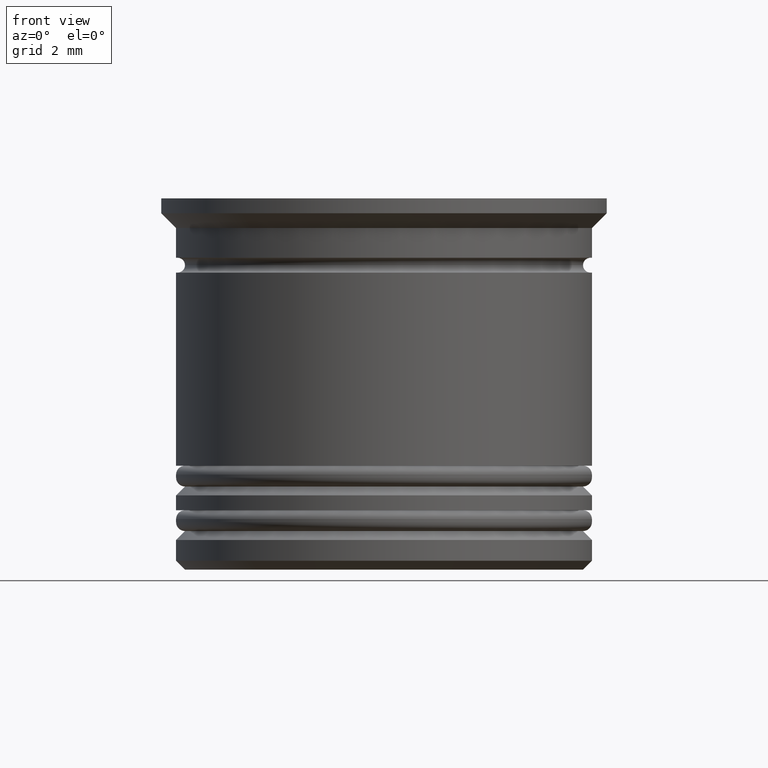
[diagram: clean part render]
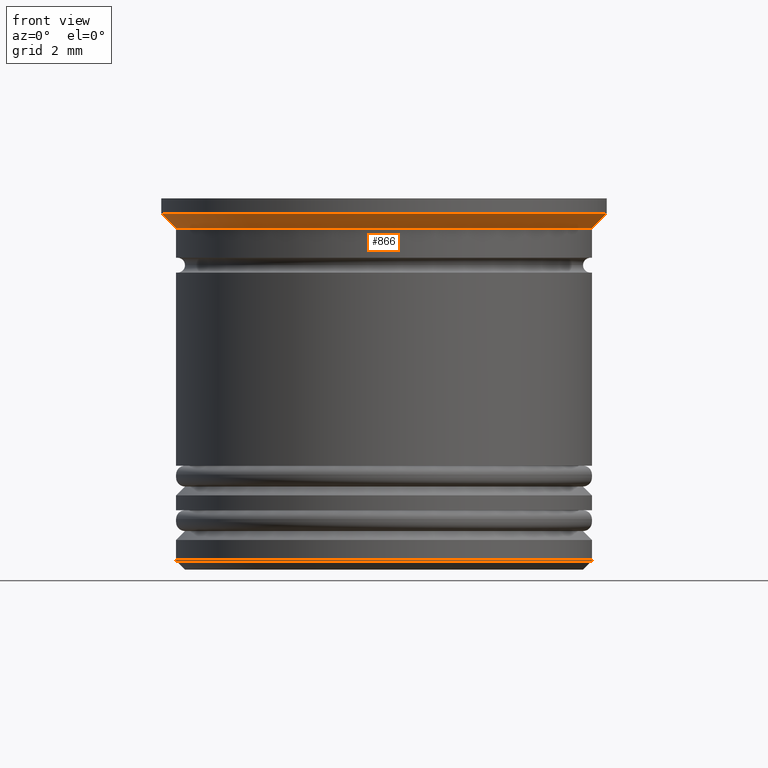
[diagram: same view with one face highlighted and labeled with its STEP entity id]
A machine part, front view. The second image highlights one B-rep face of the part: STEP entity #866.
In plain terms, the highlighted conical surface has half-angle 45 deg.
Its self-contained STEP definition (entity closure, byte-faithful):
#9 = DIRECTION ( 'NONE',  ( -0.000000000000000000, -0.000000000000000000, 1.000000000000000000 ) ) ;
#10 = LINE ( 'NONE', #622, #1186 ) ;
#26 = CONICAL_SURFACE ( 'NONE', #1342, 7.500000000000000000, 0.7853981633974500554 ) ;
#187 = CARTESIAN_POINT ( 'NONE',  ( 7.500000000000000000, 0.000000000000000000, -0.4999999999999930611 ) ) ;
#299 = CARTESIAN_POINT ( 'NONE',  ( -7.500000000000000000, 9.184850993605147944E-16, -0.4999999999999930611 ) ) ;
#422 = EDGE_CURVE ( 'NONE', #1523, #615, #10, .T. ) ;
#463 = CIRCLE ( 'NONE', #1123, 7.500000000000000000 ) ;
#608 = CIRCLE ( 'NONE', #1120, 6.999999999999999112 ) ;
#615 = VERTEX_POINT ( 'NONE', #299 ) ;
#622 = CARTESIAN_POINT ( 'NONE',  ( -7.500000000000000000, 9.184850993605147944E-16, -0.4999999999999930611 ) ) ;
#640 = LINE ( 'NONE', #187, #1963 ) ;
#648 = ORIENTED_EDGE ( 'NONE', *, *, #1714, .F. ) ;
#726 = CARTESIAN_POINT ( 'NONE',  ( -6.999999999999999112, 8.572527594031472204E-16, -0.9999999999999995559 ) ) ;
#734 = CARTESIAN_POINT ( 'NONE',  ( 0.000000000000000000, 0.000000000000000000, -0.9999999999999995559 ) ) ;
#765 = CARTESIAN_POINT ( 'NONE',  ( 6.999999999999999112, 0.000000000000000000, -0.9999999999999995559 ) ) ;
#796 = DIRECTION ( 'NONE',  ( 0.7071067811865487940, 0.000000000000000000, 0.7071067811865463515 ) ) ;
#859 = ORIENTED_EDGE ( 'NONE', *, *, #1255, .T. ) ;
#866 = ADVANCED_FACE ( 'NONE', ( #954 ), #26, .T. ) ;
#944 = CARTESIAN_POINT ( 'NONE',  ( 0.000000000000000000, 0.000000000000000000, -0.4999999999999930611 ) ) ;
#951 = DIRECTION ( 'NONE',  ( -1.000000000000000000, 0.000000000000000000, 0.000000000000000000 ) ) ;
#954 = FACE_OUTER_BOUND ( 'NONE', #1409, .T. ) ;
#1017 = EDGE_CURVE ( 'NONE', #1523, #1292, #608, .T. ) ;
#1108 = DIRECTION ( 'NONE',  ( -0.000000000000000000, -0.000000000000000000, 1.000000000000000000 ) ) ;
#1120 = AXIS2_PLACEMENT_3D ( 'NONE', #734, #1336, #1949 ) ;
#1123 = AXIS2_PLACEMENT_3D ( 'NONE', #944, #9, #951 ) ;
#1186 = VECTOR ( 'NONE', #1232, 1000.000000000000000 ) ;
#1201 = ORIENTED_EDGE ( 'NONE', *, *, #1017, .T. ) ;
#1232 = DIRECTION ( 'NONE',  ( -0.7071067811865487940, 8.659560562354948882E-17, 0.7071067811865463515 ) ) ;
#1255 = EDGE_CURVE ( 'NONE', #1292, #1892, #640, .T. ) ;
#1292 = VERTEX_POINT ( 'NONE', #765 ) ;
#1336 = DIRECTION ( 'NONE',  ( -0.000000000000000000, -0.000000000000000000, 1.000000000000000000 ) ) ;
#1342 = AXIS2_PLACEMENT_3D ( 'NONE', #1431, #1108, #1729 ) ;
#1409 = EDGE_LOOP ( 'NONE', ( #1745, #1201, #859, #648 ) ) ;
#1431 = CARTESIAN_POINT ( 'NONE',  ( 0.000000000000000000, 0.000000000000000000, -0.4999999999999930611 ) ) ;
#1465 = CARTESIAN_POINT ( 'NONE',  ( 7.500000000000000000, 0.000000000000000000, -0.4999999999999930611 ) ) ;
#1523 = VERTEX_POINT ( 'NONE', #726 ) ;
#1714 = EDGE_CURVE ( 'NONE', #615, #1892, #463, .T. ) ;
#1729 = DIRECTION ( 'NONE',  ( 1.000000000000000000, 0.000000000000000000, 0.000000000000000000 ) ) ;
#1745 = ORIENTED_EDGE ( 'NONE', *, *, #422, .F. ) ;
#1892 = VERTEX_POINT ( 'NONE', #1465 ) ;
#1949 = DIRECTION ( 'NONE',  ( 1.000000000000000000, 0.000000000000000000, 0.000000000000000000 ) ) ;
#1963 = VECTOR ( 'NONE', #796, 1000.000000000000000 ) ;